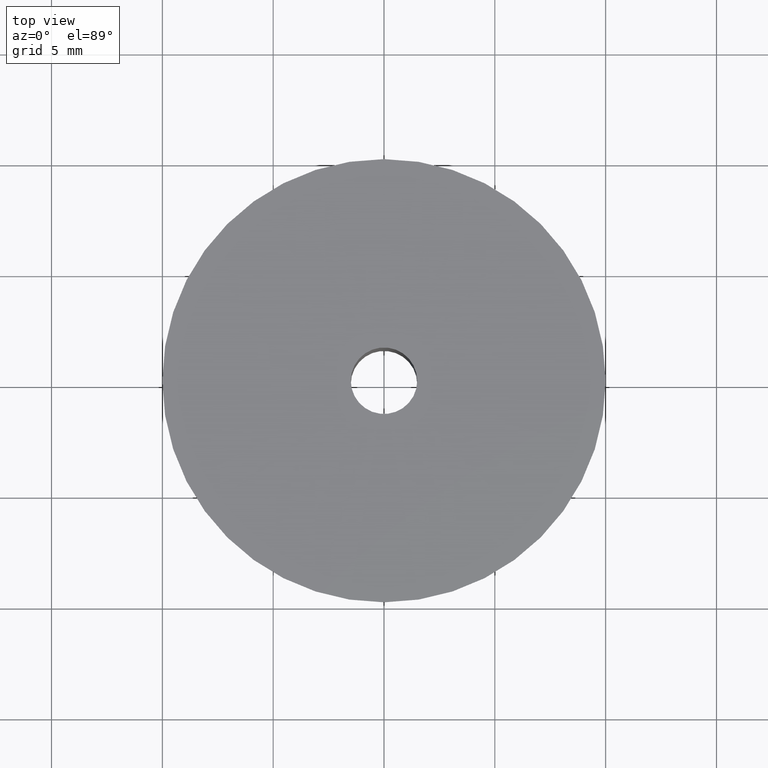
[diagram: clean part render]
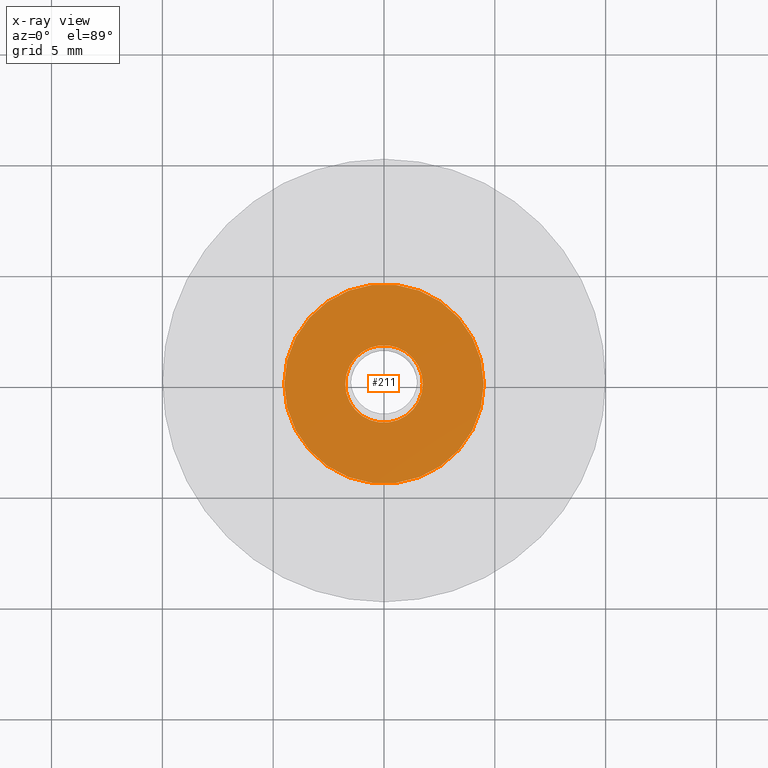
[diagram: x-ray — body ghosted, one internal face saturated and labeled with its STEP entity id]
A machine part, top view, then the same camera in x-ray: the body is ghosted and one INTERNAL B-rep face — a face not visible from any outside direction — is saturated and labeled: STEP entity #211.
In plain terms, the highlighted planar face has unit normal (0, 0, -1).
Its self-contained STEP definition (entity closure, byte-faithful):
#20 = CARTESIAN_POINT ( 'NONE',  ( 1.750000000000000000, 2.143131898507868300E-016, 8.499999999999900500 ) ) ;
#40 = CARTESIAN_POINT ( 'NONE',  ( 0.0000000000000000000, 0.0000000000000000000, 8.499999999999900500 ) ) ;
#42 = EDGE_LOOP ( 'NONE', ( #386, #134 ) ) ;
#60 = ORIENTED_EDGE ( 'NONE', *, *, #760, .T. ) ;
#97 = CARTESIAN_POINT ( 'NONE',  ( 1.750000000000000000, 0.0000000000000000000, 8.499999999999900500 ) ) ;
#115 = CARTESIAN_POINT ( 'NONE',  ( 0.0000000000000000000, 0.0000000000000000000, 8.499999999999900500 ) ) ;
#117 = AXIS2_PLACEMENT_3D ( 'NONE', #236, #656, #417 ) ;
#122 = AXIS2_PLACEMENT_3D ( 'NONE', #97, #527, #438 ) ;
#134 = ORIENTED_EDGE ( 'NONE', *, *, #226, .F. ) ;
#136 = FACE_OUTER_BOUND ( 'NONE', #42, .T. ) ;
#182 = DIRECTION ( 'NONE',  ( -1.000000000000000000, 0.0000000000000000000, 0.0000000000000000000 ) ) ;
#186 = CARTESIAN_POINT ( 'NONE',  ( -4.500000000000000000, 0.0000000000000000000, 8.499999999999900500 ) ) ;
#204 = VERTEX_POINT ( 'NONE', #288 ) ;
#211 = ADVANCED_FACE ( 'NONE', ( #136, #743 ), #463, .F. ) ;
#226 = EDGE_CURVE ( 'NONE', #622, #594, #457, .T. ) ;
#236 = CARTESIAN_POINT ( 'NONE',  ( 0.0000000000000000000, 0.0000000000000000000, 8.499999999999900500 ) ) ;
#278 = EDGE_CURVE ( 'NONE', #368, #204, #392, .T. ) ;
#288 = CARTESIAN_POINT ( 'NONE',  ( -1.750000000000000000, 0.0000000000000000000, 8.499999999999900500 ) ) ;
#306 = CIRCLE ( 'NONE', #333, 1.750000000000000000 ) ;
#308 = EDGE_LOOP ( 'NONE', ( #60, #742 ) ) ;
#327 = DIRECTION ( 'NONE',  ( 0.0000000000000000000, 0.0000000000000000000, -1.000000000000000000 ) ) ;
#333 = AXIS2_PLACEMENT_3D ( 'NONE', #115, #546, #182 ) ;
#368 = VERTEX_POINT ( 'NONE', #20 ) ;
#385 = DIRECTION ( 'NONE',  ( -1.000000000000000000, 0.0000000000000000000, 0.0000000000000000000 ) ) ;
#386 = ORIENTED_EDGE ( 'NONE', *, *, #433, .F. ) ;
#392 = CIRCLE ( 'NONE', #582, 1.750000000000000000 ) ;
#417 = DIRECTION ( 'NONE',  ( -1.000000000000000000, 0.0000000000000000000, 0.0000000000000000000 ) ) ;
#421 = AXIS2_PLACEMENT_3D ( 'NONE', #40, #692, #385 ) ;
#433 = EDGE_CURVE ( 'NONE', #594, #622, #699, .T. ) ;
#438 = DIRECTION ( 'NONE',  ( -1.000000000000000000, 0.0000000000000000000, 0.0000000000000000000 ) ) ;
#457 = CIRCLE ( 'NONE', #421, 4.500000000000000000 ) ;
#463 = PLANE ( 'NONE',  #122 ) ;
#527 = DIRECTION ( 'NONE',  ( 0.0000000000000000000, 0.0000000000000000000, -1.000000000000000000 ) ) ;
#546 = DIRECTION ( 'NONE',  ( 0.0000000000000000000, 0.0000000000000000000, -1.000000000000000000 ) ) ;
#579 = CARTESIAN_POINT ( 'NONE',  ( 4.500000000000000000, 5.510910596163088600E-016, 8.499999999999900500 ) ) ;
#582 = AXIS2_PLACEMENT_3D ( 'NONE', #677, #327, #731 ) ;
#594 = VERTEX_POINT ( 'NONE', #186 ) ;
#622 = VERTEX_POINT ( 'NONE', #579 ) ;
#656 = DIRECTION ( 'NONE',  ( 0.0000000000000000000, 0.0000000000000000000, -1.000000000000000000 ) ) ;
#677 = CARTESIAN_POINT ( 'NONE',  ( 0.0000000000000000000, 0.0000000000000000000, 8.499999999999900500 ) ) ;
#692 = DIRECTION ( 'NONE',  ( 0.0000000000000000000, 0.0000000000000000000, -1.000000000000000000 ) ) ;
#699 = CIRCLE ( 'NONE', #117, 4.500000000000000000 ) ;
#731 = DIRECTION ( 'NONE',  ( -1.000000000000000000, 0.0000000000000000000, 0.0000000000000000000 ) ) ;
#742 = ORIENTED_EDGE ( 'NONE', *, *, #278, .T. ) ;
#743 = FACE_BOUND ( 'NONE', #308, .T. ) ;
#760 = EDGE_CURVE ( 'NONE', #204, #368, #306, .T. ) ;